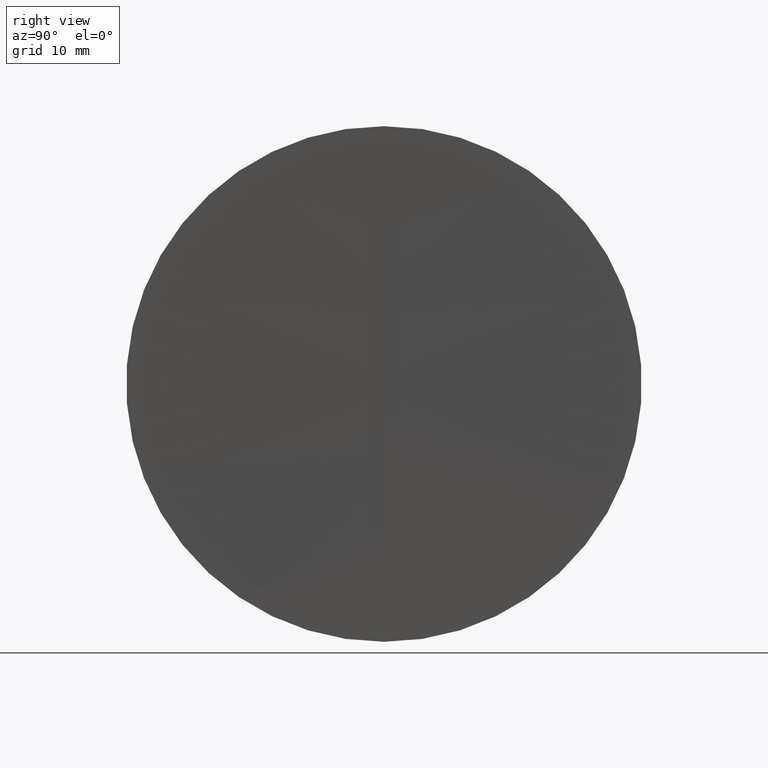
[diagram: clean part render]
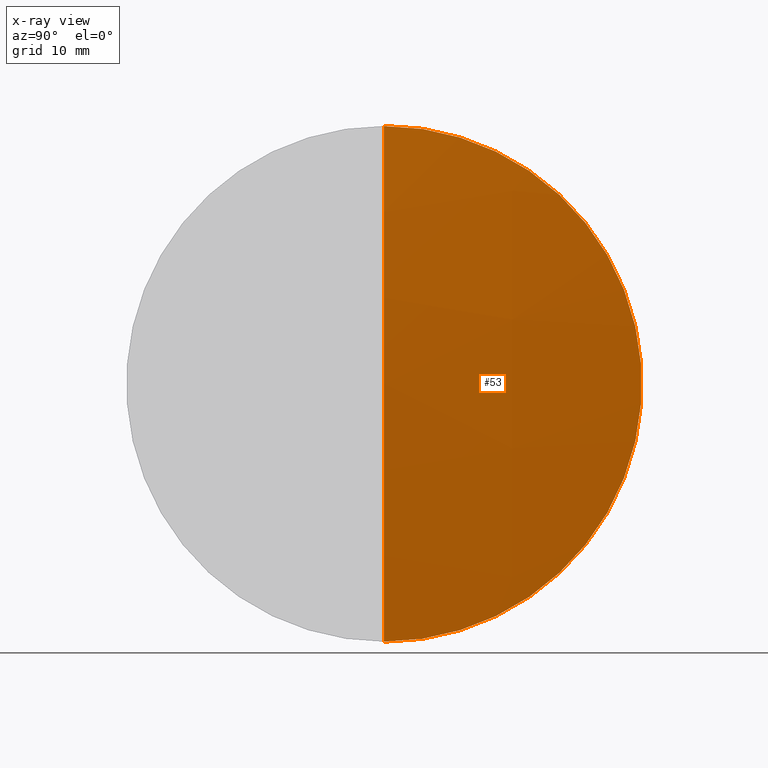
[diagram: x-ray — body ghosted, one internal face saturated and labeled with its STEP entity id]
A machine part, right view, then the same camera in x-ray: the body is ghosted and one INTERNAL B-rep face — a face not visible from any outside direction — is saturated and labeled: STEP entity #53.
In plain terms, the highlighted spherical surface has radius 291.1 mm.
Its self-contained STEP definition (entity closure, byte-faithful):
#1 = DIRECTION ( 'NONE',  ( 0.0000000000000000000, 0.0000000000000000000, -1.000000000000000000 ) ) ;
#7 = CARTESIAN_POINT ( 'NONE',  ( -31.36118293043882600, 0.0000000000000000000, 25.39999999999999100 ) ) ;
#31 = ORIENTED_EDGE ( 'NONE', *, *, #63, .T. ) ;
#43 = DIRECTION ( 'NONE',  ( -1.000000000000000000, -0.0000000000000000000, -0.0000000000000000000 ) ) ;
#47 = DIRECTION ( 'NONE',  ( 0.0000000000000000000, -1.000000000000000000, 0.0000000000000000000 ) ) ;
#53 = ADVANCED_FACE ( 'NONE', ( #138 ), #169, .T. ) ;
#55 = CIRCLE ( 'NONE', #251, 291.1000000000000200 ) ;
#63 = EDGE_CURVE ( 'NONE', #274, #221, #55, .T. ) ;
#71 = CARTESIAN_POINT ( 'NONE',  ( -321.3509241282956700, 0.0000000000000000000, -5.558005932232330100E-015 ) ) ;
#88 = AXIS2_PLACEMENT_3D ( 'NONE', #109, #336, #292 ) ;
#101 = EDGE_CURVE ( 'NONE', #274, #143, #157, .T. ) ;
#109 = CARTESIAN_POINT ( 'NONE',  ( -321.3509241282956700, 0.0000000000000000000, -5.558005932232330100E-015 ) ) ;
#134 = CARTESIAN_POINT ( 'NONE',  ( -321.3509241282956700, 0.0000000000000000000, -5.558005932232330100E-015 ) ) ;
#138 = FACE_OUTER_BOUND ( 'NONE', #288, .T. ) ;
#139 = DIRECTION ( 'NONE',  ( 0.0000000000000000000, 0.0000000000000000000, 1.000000000000000000 ) ) ;
#142 = CARTESIAN_POINT ( 'NONE',  ( -31.36118293043882600, 3.110602869834276100E-015, -25.39999999999999100 ) ) ;
#143 = VERTEX_POINT ( 'NONE', #7 ) ;
#157 = CIRCLE ( 'NONE', #187, 291.1000000000000200 ) ;
#169 = SPHERICAL_SURFACE ( 'NONE', #88, 291.1000000000000200 ) ;
#187 = AXIS2_PLACEMENT_3D ( 'NONE', #71, #47, #1 ) ;
#220 = CARTESIAN_POINT ( 'NONE',  ( -31.36118293043882600, 0.0000000000000000000, 0.0000000000000000000 ) ) ;
#221 = VERTEX_POINT ( 'NONE', #142 ) ;
#229 = ORIENTED_EDGE ( 'NONE', *, *, #101, .F. ) ;
#231 = DIRECTION ( 'NONE',  ( -0.0000000000000000000, 1.000000000000000000, 1.224646799147353200E-016 ) ) ;
#251 = AXIS2_PLACEMENT_3D ( 'NONE', #134, #231, #260 ) ;
#260 = DIRECTION ( 'NONE',  ( 0.0000000000000000000, -1.224646799147353200E-016, 1.000000000000000000 ) ) ;
#274 = VERTEX_POINT ( 'NONE', #308 ) ;
#279 = ORIENTED_EDGE ( 'NONE', *, *, #323, .F. ) ;
#288 = EDGE_LOOP ( 'NONE', ( #229, #31, #279 ) ) ;
#292 = DIRECTION ( 'NONE',  ( 0.0000000000000000000, 0.0000000000000000000, 1.000000000000000000 ) ) ;
#308 = CARTESIAN_POINT ( 'NONE',  ( -30.25092412829566500, 0.0000000000000000000, 1.226672822935739700E-014 ) ) ;
#317 = AXIS2_PLACEMENT_3D ( 'NONE', #220, #43, #139 ) ;
#323 = EDGE_CURVE ( 'NONE', #143, #221, #342, .T. ) ;
#336 = DIRECTION ( 'NONE',  ( 0.0000000000000000000, 1.000000000000000000, 0.0000000000000000000 ) ) ;
#342 = CIRCLE ( 'NONE', #317, 25.39999999999999100 ) ;